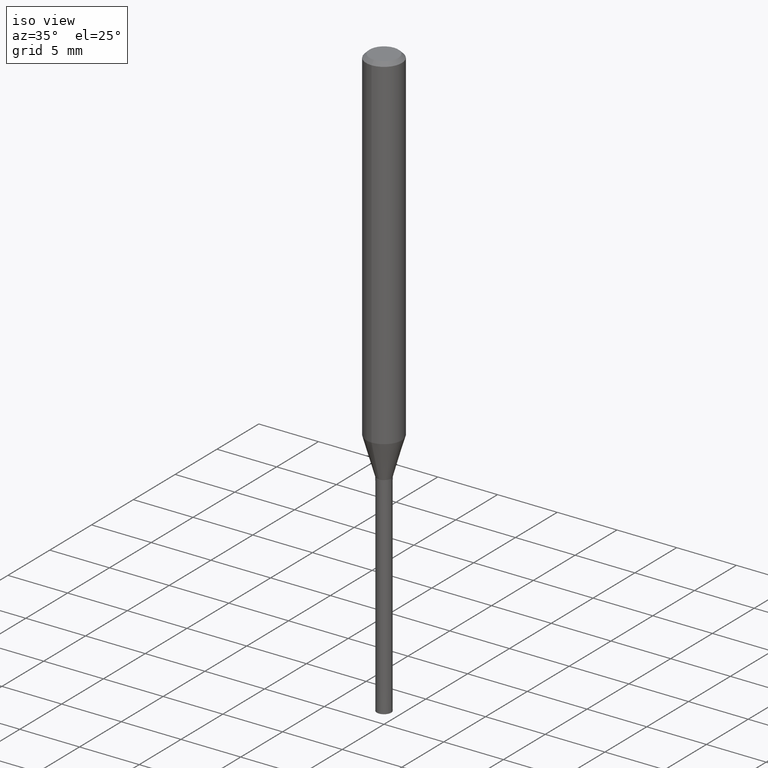
[diagram: clean part render]
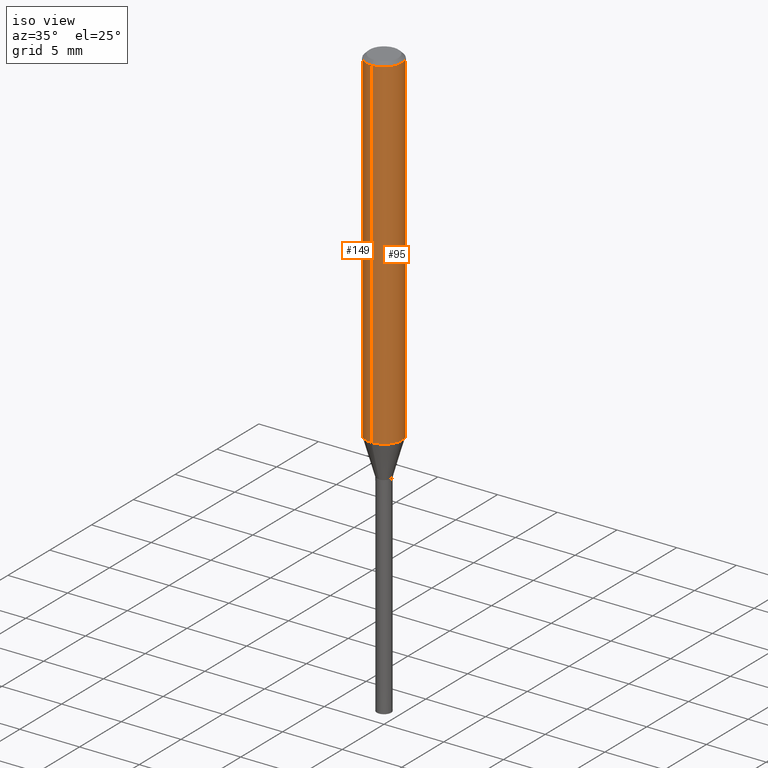
[diagram: same view with one multi-face feature highlighted, each face labeled with its STEP entity id]
A machine part, iso view. The highlighted faces form ONE feature: a constant-radius fillet chain: 2 tangent blend faces with common blend radius 1.5 mm. The faces share edges in the B-rep.
Their STEP definitions:
[1] entity #149 (Cylinder):
#97=VERTEX_POINT('',#233);
#99=VERTEX_POINT('',#235);
#123=EDGE_CURVE('',#201,#99,#263,.T.);
#131=EDGE_CURVE('',#97,#153,#272,.T.);
#149=ADVANCED_FACE('',(#291),#292,.T.);
#153=VERTEX_POINT('',#297);
#171=EDGE_CURVE('',#153,#201,#317,.T.);
#187=EDGE_CURVE('',#97,#99,#334,.T.);
#201=VERTEX_POINT('',#350);
#233=CARTESIAN_POINT('',(1.83690953073357E-016,-1.5,-28.861));
#235=CARTESIAN_POINT('',(0.0,1.5,-28.861));
#263=LINE('',#416,#417);
#272=LINE('',#428,#429);
#291=FACE_OUTER_BOUND('',#454,.T.);
#292=CYLINDRICAL_SURFACE('',#455,1.5);
#297=CARTESIAN_POINT('',(1.83690953073357E-016,-1.5,-0.300000000000001));
#317=CIRCLE('',#484,1.5);
#334=CIRCLE('',#508,1.5);
#350=CARTESIAN_POINT('',(0.0,1.5,-0.300000000000001));
#416=CARTESIAN_POINT('',(-1.83690953073357E-016,1.5,-14.5805));
#417=VECTOR('',#584,1.0);
#428=CARTESIAN_POINT('',(1.83690953073357E-016,-1.5,-14.5805));
#429=VECTOR('',#596,1.0);
#454=EDGE_LOOP('',(#613,#614,#615,#616));
#455=AXIS2_PLACEMENT_3D('',#617,#618,#619);
#484=AXIS2_PLACEMENT_3D('',#650,#651,#652);
#508=AXIS2_PLACEMENT_3D('',#668,#669,#670);
#584=DIRECTION('',(0.0,0.0,-1.0));
#596=DIRECTION('',(-0.0,-0.0,1.0));
#613=ORIENTED_EDGE('',*,*,#123,.T.);
#614=ORIENTED_EDGE('',*,*,#187,.F.);
#615=ORIENTED_EDGE('',*,*,#131,.T.);
#616=ORIENTED_EDGE('',*,*,#171,.T.);
#617=CARTESIAN_POINT('',(0.0,0.0,-14.5805));
#618=DIRECTION('',(-0.0,-0.0,1.0));
#619=DIRECTION('',(0.0,1.0,0.0));
#650=CARTESIAN_POINT('',(0.0,0.0,-0.300000000000001));
#651=DIRECTION('',(0.0,0.0,-1.0));
#652=DIRECTION('',(0.0,1.0,0.0));
#668=CARTESIAN_POINT('',(0.0,0.0,-28.861));
#669=DIRECTION('',(0.0,0.0,-1.0));
#670=DIRECTION('',(0.0,1.0,0.0));
[2] entity #95 (Cylinder):
#95=ADVANCED_FACE('',(#230),#231,.T.);
#97=VERTEX_POINT('',#233);
#99=VERTEX_POINT('',#235);
#123=EDGE_CURVE('',#201,#99,#263,.T.);
#131=EDGE_CURVE('',#97,#153,#272,.T.);
#153=VERTEX_POINT('',#297);
#193=EDGE_CURVE('',#201,#153,#340,.T.);
#199=EDGE_CURVE('',#99,#97,#348,.T.);
#201=VERTEX_POINT('',#350);
#230=FACE_OUTER_BOUND('',#373,.T.);
#231=CYLINDRICAL_SURFACE('',#374,1.5);
#233=CARTESIAN_POINT('',(1.83690953073357E-016,-1.5,-28.861));
#235=CARTESIAN_POINT('',(0.0,1.5,-28.861));
#263=LINE('',#416,#417);
#272=LINE('',#428,#429);
#297=CARTESIAN_POINT('',(1.83690953073357E-016,-1.5,-0.300000000000001));
#340=CIRCLE('',#517,1.5);
#348=CIRCLE('',#526,1.5);
#350=CARTESIAN_POINT('',(0.0,1.5,-0.300000000000001));
#373=EDGE_LOOP('',(#539,#540,#541,#542));
#374=AXIS2_PLACEMENT_3D('',#543,#544,#545);
#416=CARTESIAN_POINT('',(-1.83690953073357E-016,1.5,-14.5805));
#417=VECTOR('',#584,1.0);
#428=CARTESIAN_POINT('',(1.83690953073357E-016,-1.5,-14.5805));
#429=VECTOR('',#596,1.0);
#517=AXIS2_PLACEMENT_3D('',#677,#678,#679);
#526=AXIS2_PLACEMENT_3D('',#694,#695,#696);
#539=ORIENTED_EDGE('',*,*,#123,.F.);
#540=ORIENTED_EDGE('',*,*,#193,.T.);
#541=ORIENTED_EDGE('',*,*,#131,.F.);
#542=ORIENTED_EDGE('',*,*,#199,.F.);
#543=CARTESIAN_POINT('',(0.0,0.0,-14.5805));
#544=DIRECTION('',(-0.0,-0.0,1.0));
#545=DIRECTION('',(0.0,1.0,0.0));
#584=DIRECTION('',(0.0,0.0,-1.0));
#596=DIRECTION('',(-0.0,-0.0,1.0));
#677=CARTESIAN_POINT('',(0.0,0.0,-0.300000000000001));
#678=DIRECTION('',(0.0,0.0,-1.0));
#679=DIRECTION('',(0.0,1.0,0.0));
#694=CARTESIAN_POINT('',(0.0,0.0,-28.861));
#695=DIRECTION('',(0.0,0.0,-1.0));
#696=DIRECTION('',(0.0,1.0,0.0));